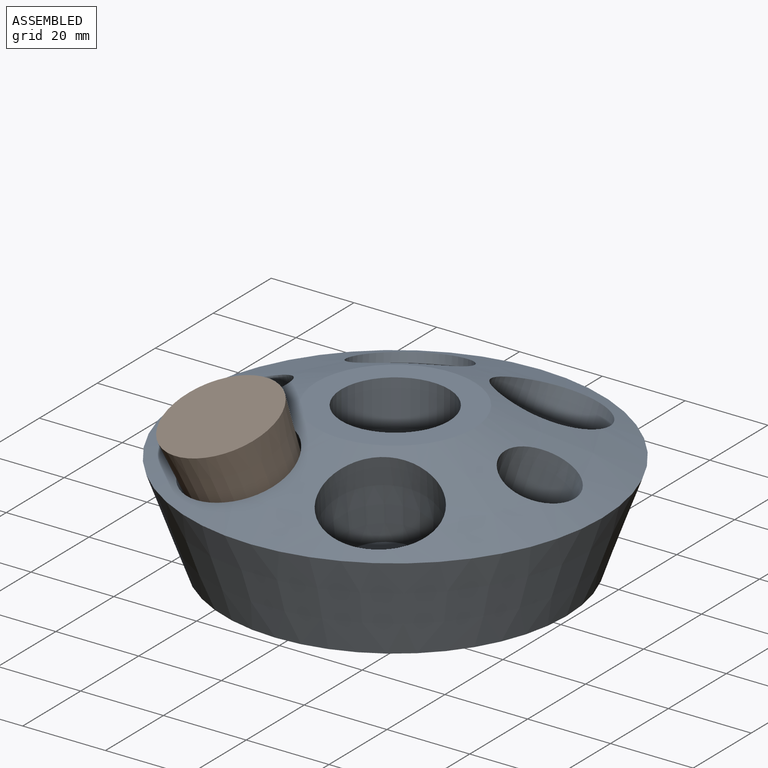
[diagram: assembled view]
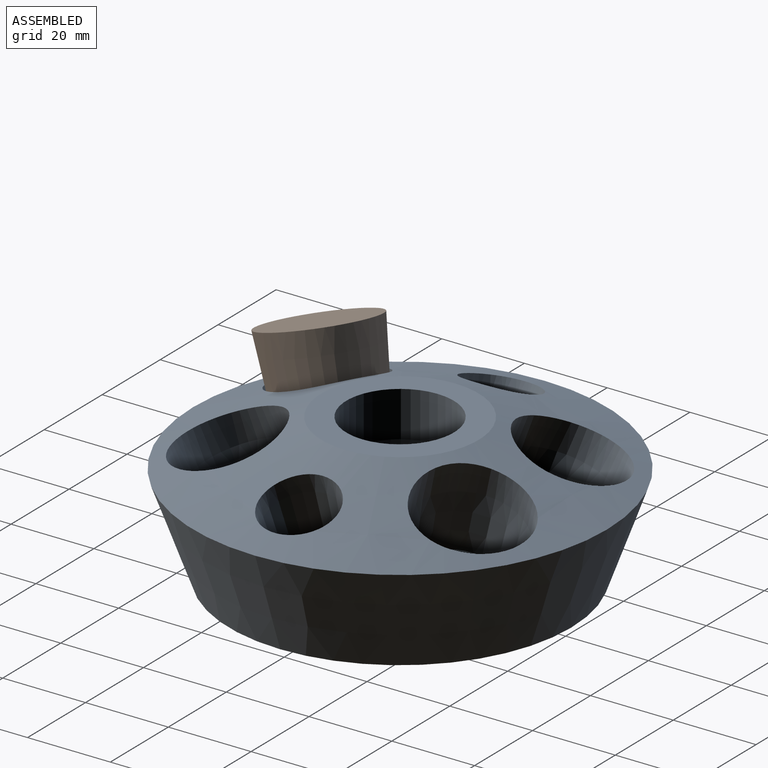
[diagram: assembled view, second angle]
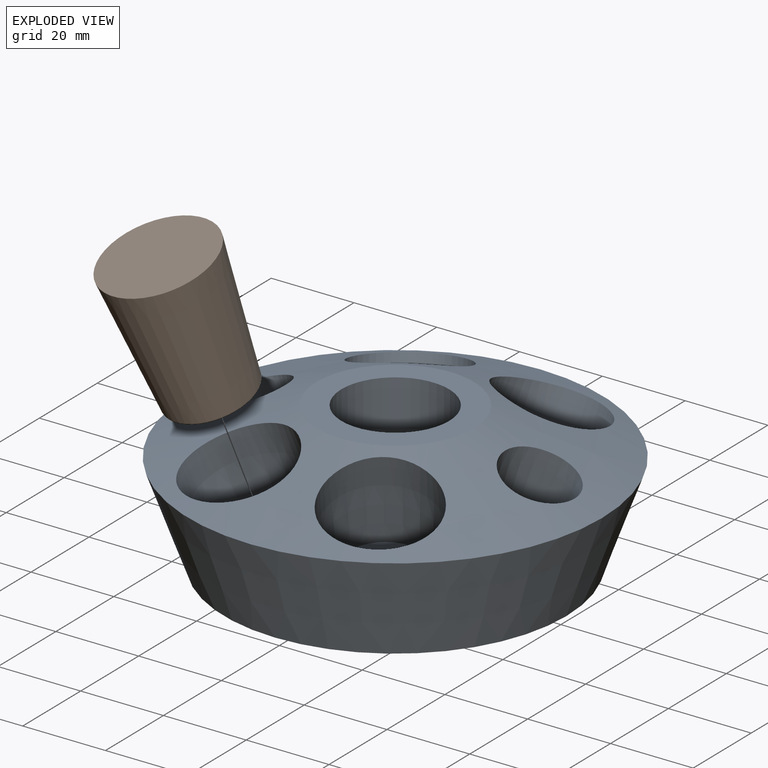
[diagram: exploded view]
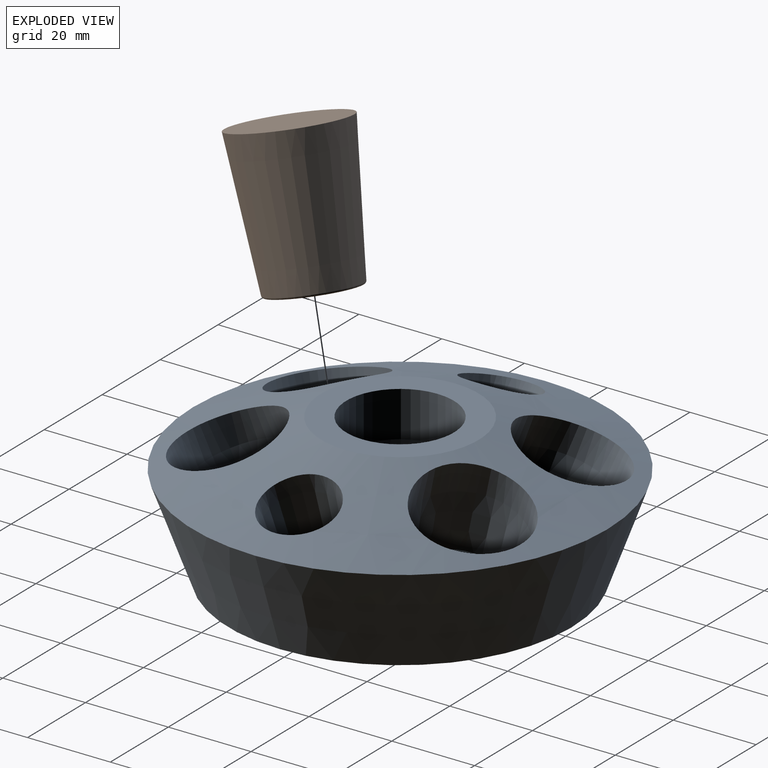
[diagram: exploded view, second angle]
ASSEMBLY  parts=2 mates=2
PART A: 30 faces, bbox 100.6x100.6x38.4 mm
  f0: cylinder r=4mm len=12.12mm, axis (-0.17,0.3,0.94), area 214mm2, adj f1,f19
  f1: plane 23.81x23.08mm, normal (-0.17,0.3,0.94), area 408.4mm2, adj f0,f2
  f2: cone r=12.08mm half-angle=3.5deg, axis (-0.17,0.3,0.94), area 1184.2mm2, adj f1,f3
  f3: cylinder r=13mm len=27.15mm, axis (-0.17,0.3,0.94), area 603.6mm2, adj f2,f12
  f4: cylinder r=4mm len=12.12mm, axis (0.17,-0.3,0.94), area 214mm2, adj f5,f19
  f5: plane 23.81x23.08mm, normal (0.17,-0.3,0.94), area 408.4mm2, adj f4,f6
  f6: cone r=12.08mm half-angle=3.5deg, axis (0.17,-0.3,0.94), area 1184.2mm2, adj f5,f7
  f7: cylinder r=13mm len=27.15mm, axis (0.17,-0.3,0.94), area 603.6mm2, adj f6,f12
  f8: cylinder r=4mm len=12.12mm, axis (0.17,0.3,0.94), area 214mm2, adj f9,f19
  f9: plane 23.81x23.08mm, normal (0.17,0.3,0.94), area 408.4mm2, adj f8,f10
  f10: cone r=12.08mm half-angle=3.5deg, axis (0.17,0.3,0.94), area 1184.2mm2, adj f9,f11
  f11: cylinder r=13mm len=27.15mm, axis (0.17,0.3,0.94), area 603.6mm2, adj f10,f12
  f12: cone r=19mm half-angle=70deg, axis (0,0,-1), area 4529.5mm2, adj f3,f7,f11,f15,f17,f18,f23,f26
  f13: plane 15x14.1mm, normal (0.34,0,0.94), area 126.4mm2, adj f14,f15
  f14: cylinder r=4mm len=12.1mm, axis (0.34,0,0.94), area 214mm2, adj f13,f19
  f15: cone r=7.5mm half-angle=3.5deg, axis (0.34,0,0.94), area 1158.8mm2, adj f12,f13
  f16: cylinder r=13mm len=26mm, axis (0,0,-1), area 898.5mm2, adj f17,f22
  f17: plane 38x38mm, normal (0,0,1), area 603.2mm2, adj f12,f16
  f18: cone r=50mm half-angle=20deg, axis (0,0,1), area 7244.6mm2, adj f12,f19
  f19: plane 83.35x83.35mm, normal (0,0,-1), area 5005mm2, adj f0,f4,f8,f14,f18,f20,f24,f27
  f20: cylinder r=4mm len=10mm, axis (0,0,-1), area 251.3mm2, adj f19,f21
  f21: plane 22.31x22.31mm, normal (0,0,1), area 340.8mm2, adj f20,f22
  f22: cone r=13mm half-angle=7.5deg, axis (0,0,1), area 1071.6mm2, adj f16,f21
  f23: cone r=7.5mm half-angle=3.5deg, axis (-0.34,0,0.94), area 1155.3mm2, adj f12,f25
  f24: cylinder r=4mm len=12.1mm, axis (-0.34,0,0.94), area 214mm2, adj f19,f25
  f25: plane 15x14.1mm, normal (-0.34,0,0.94), area 126.4mm2, adj f23,f24
  f26: cylinder r=13mm len=27.15mm, axis (-0.17,-0.3,0.94), area 603.6mm2, adj f12,f29
  f27: cylinder r=4mm len=12.12mm, axis (-0.17,-0.3,0.94), area 214mm2, adj f19,f28
  f28: plane 23.81x23.08mm, normal (-0.17,-0.3,0.94), area 408.4mm2, adj f27,f29
  f29: cone r=12.08mm half-angle=3.5deg, axis (-0.17,-0.3,0.94), area 1184.2mm2, adj f26,f28
PART B: 4 faces, bbox 27x27x34 mm
  f0: plane 20.08x20.08mm, normal (0,0,-1), area 316.8mm2, adj f3
  f1: plane 27x27mm, normal (0,0,1), area 572.6mm2, adj f2
  f2: cone r=13.5mm half-angle=5deg, axis (0,0,1), area 2543.2mm2, adj f1,f3
  f3: torus R=10.04mm, axis (0,0,1), area 48.2mm2, adj f0,f2
PLACE A at identity
PLACE B rot(axis=(0.87,-0.49,-0.07),20.1deg) t=(-13.22,-22.91,8)mm
MATE parallel B.f2 <-> A.f29  axis (0.17,0.3,-0.94) through (-13.22,-22.91,8)mm
MATE slider B.f2 <-> A.f29  axis (-0.17,-0.3,0.94) through (-13.3,-23.04,8.43)mm
